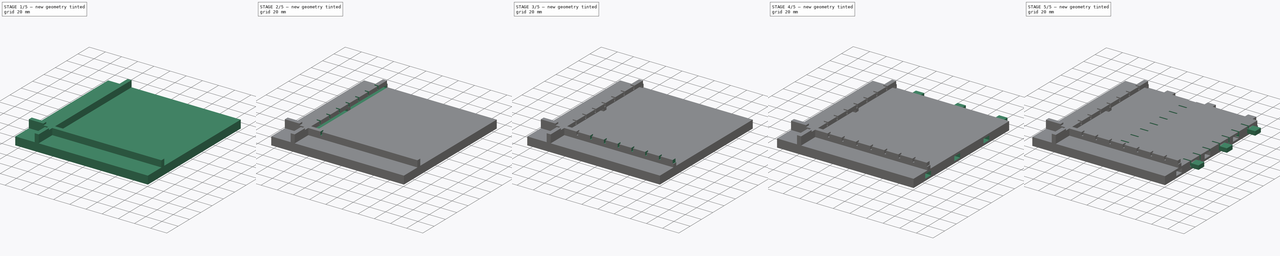
[diagram: build sequence overview — one tinted view per stage of 5, left to right]
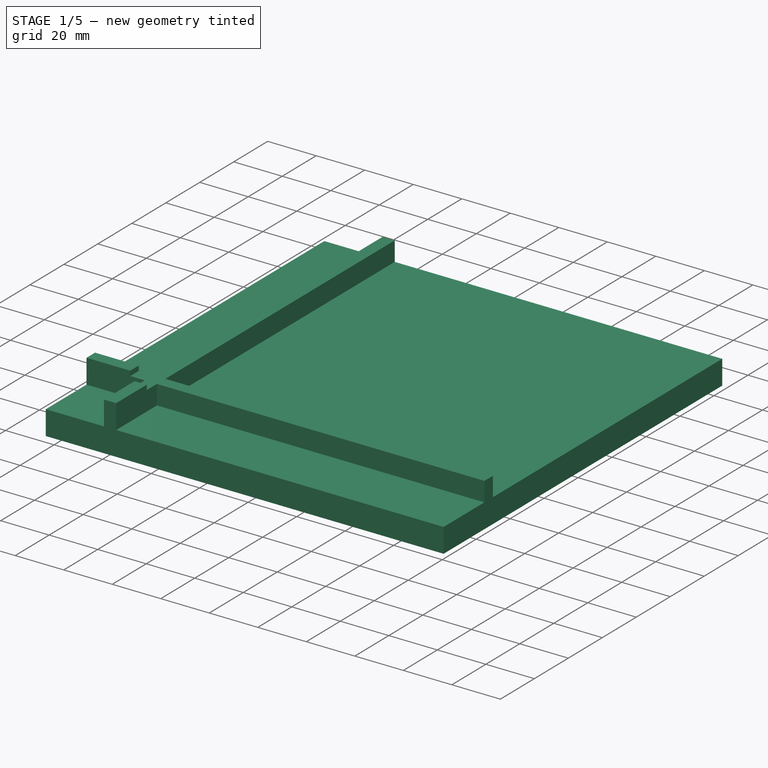
[diagram: stage 1 of 5 — iso view after this stage's code; geometry added in this stage tinted green]
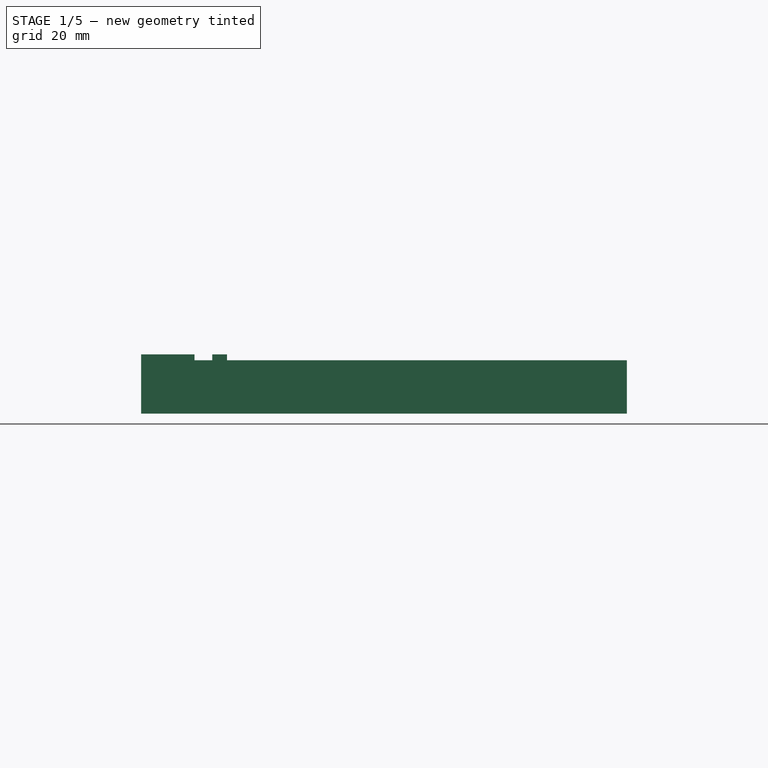
[diagram: stage 1 of 5 — front view after this stage's code; geometry added in this stage tinted green]
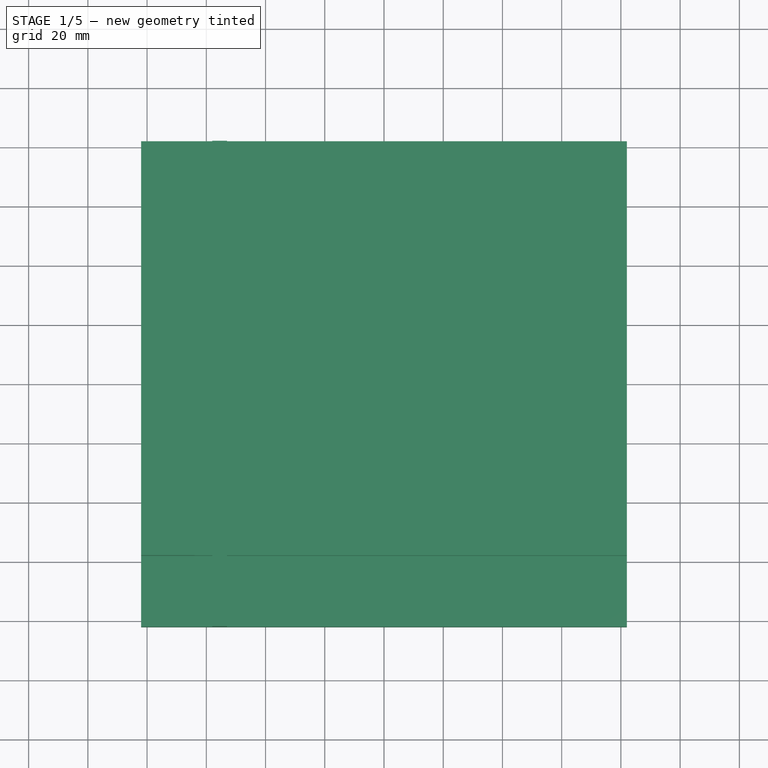
[diagram: stage 1 of 5 — top view after this stage's code; geometry added in this stage tinted green]
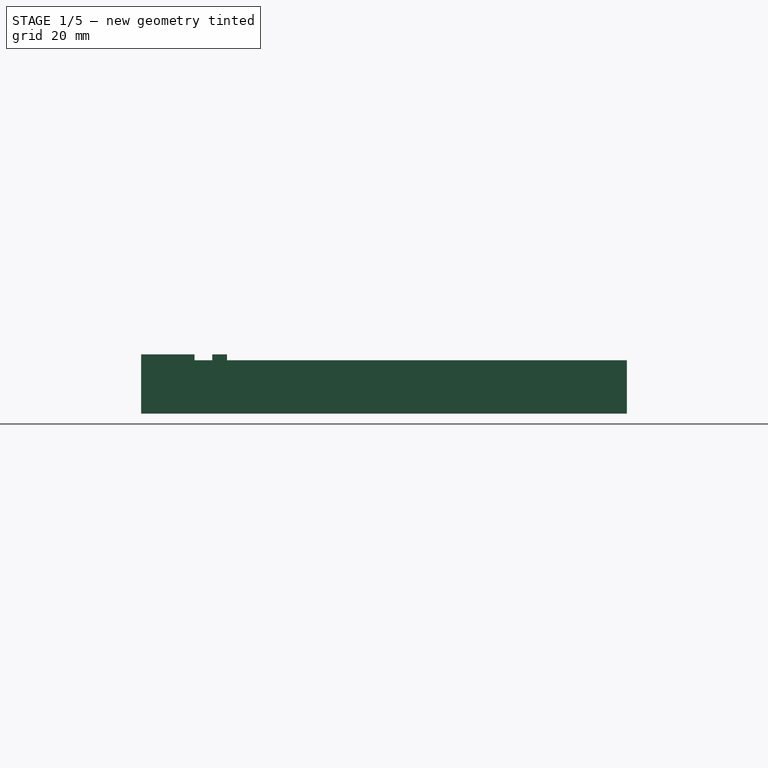
[diagram: stage 1 of 5 — right view after this stage's code; geometry added in this stage tinted green]
FCSTD DOCUMENT  (FreeCAD 2024.207R38947 (Git))
Label: frame_plate_left_bottom_debugging_rt
License: All rights reserved
LicenseURL: http://en.wikipedia.org/wiki/All_rights_reserved
objects: Sketcher::SketchObject×12, PartDesign::Pocket×8, PartDesign::LinearPattern×8, PartDesign::Pad×4, PartDesign::MultiTransform×1, PartDesign::Body×1
note: 88 computed .brp shape members not serialized (recipe doc carries the construction recipe); baked Part::Feature solids carry a one-line shape summary decoded from their .brp

FEATURE [Sketcher::SketchObject] Sketch  label="LB-plate"
  ArcFitTolerance = 0
  AttachmentSupport = -> [XY_Plane]
  ExternalBSplineMaxDegree = 0
  ExternalBSplineTolerance = 0
  FullyConstrained = true
  InternalTolerance = 1e-06
  InvalidShape = false
  MakeInternals = false
  MapMode = 5
  Support = -> [XY_Plane]
  TreeRank = 0
  ValidateShape = false
  sketch-geometry (4):
    g0: LineSegment StartX=-82 StartY=82 StartZ=0 EndX=82 EndY=82 EndZ=0
    g1: LineSegment StartX=82 StartY=82 StartZ=0 EndX=82 EndY=-82 EndZ=0
    g2: LineSegment StartX=82 StartY=-82 StartZ=0 EndX=-82 EndY=-82 EndZ=0
    g3: LineSegment StartX=-82 StartY=-82 StartZ=0 EndX=-82 EndY=82 EndZ=0
  constraints (10):
    c: Coincident(g0,g1)
    c: Coincident(g1,g2)
    c: Coincident(g2,g3)
    c: Coincident(g3,g0)
    c: Horizontal(g2)
    c: Vertical(g3)
    c: DistanceX(g2,g1) = 164
    c: DistanceY(g2,g0) = 164
    c: Symmetric(g1,g0,g-1)
    c: Symmetric(g0,g0,g-2)
FEATURE [PartDesign::Pad] Pad
  AddSubType = 0
  AutoTaperInnerAngle = true
  CheckUpToFaceLimits = true
  ClaimChildren = false
  Direction = (0,0,1)
  Fit = 0
  FitJoin = 0
  InnerFit = 0
  InnerFitJoin = 0
  InvalidShape = false
  Length = 10
  Length2 = 10
  NewSolid = false
  Profile = -> Sketch
  ReferenceAxis = -> Sketch [N_Axis]
  Suppress = false
  TaperInnerAngle = 0
  TaperInnerAngleRev = 0
  TreeRank = 0
  Type = 0
  ValidateShape = true
  _ProfileBasedVersion = 0
FEATURE [Sketcher::SketchObject] Sketch001  label="LB-bounds"
  ArcFitTolerance = 0
  AttachmentSupport = -> [Pad]
  ExternalBSplineMaxDegree = 0
  ExternalBSplineTolerance = 0
  FullyConstrained = true
  InternalTolerance = 1e-06
  InvalidShape = false
  MakeInternals = false
  MapMode = 5
  Placement = pos=(0,0,10) rot=(0,0,1;0rad)
  Support = -> [Pad]
  TreeRank = 0
  ValidateShape = false
  sketch-geometry (8):
    g0: LineSegment StartX=-82 StartY=-53 StartZ=0 EndX=82 EndY=-53 EndZ=0
    g1: LineSegment StartX=82 StartY=-53 StartZ=0 EndX=82 EndY=-58 EndZ=0
    g2: LineSegment StartX=82 StartY=-58 StartZ=0 EndX=-82 EndY=-58 EndZ=0
    g3: LineSegment StartX=-82 StartY=-58 StartZ=0 EndX=-82 EndY=-53 EndZ=0
    g4: LineSegment StartX=-53 StartY=82 StartZ=0 EndX=-58 EndY=82 EndZ=0
    g5: LineSegment StartX=-58 StartY=82 StartZ=0 EndX=-58 EndY=-82 EndZ=0
    g6: LineSegment StartX=-58 StartY=-82 StartZ=0 EndX=-53 EndY=-82 EndZ=0
    g7: LineSegment StartX=-53 StartY=-82 StartZ=0 EndX=-53 EndY=82 EndZ=0
  constraints (24):
    c: Coincident(g0,g1)
    c: Coincident(g1,g2)
    c: Coincident(g2,g3)
    c: Coincident(g3,g0)
    c: Horizontal(g0)
    c: Horizontal(g2)
    c: Vertical(g1)
    c: Vertical(g3)
    c: DistanceY(g2,g0) = 5
    c: Coincident(g4,g5)
    c: Coincident(g5,g6)
    c: Coincident(g6,g7)
    c: Coincident(g7,g4)
    c: Horizontal(g4)
    c: Horizontal(g6)
    c: Vertical(g5)
    c: Vertical(g7)
    c: DistanceX(g5,g6) = 5
    c: DistanceX(g2,g6) = 29
    c: DistanceY(g5,g0) = 29
    c: DistanceY(g0,g-1) = 53
    c: DistanceX(g6,g-1) = 53
    c: DistanceX(g2,g1) = 164
    c: DistanceY(g5,g4) = 164
FEATURE [PartDesign::Pad] Pad001
  AddSubType = 0
  AutoTaperInnerAngle = true
  BaseFeature = -> Pad
  CheckUpToFaceLimits = true
  ClaimChildren = false
  Direction = (0,0,1)
  Fit = 0
  FitJoin = 0
  InnerFit = 0
  InnerFitJoin = 0
  InvalidShape = false
  Length = 10
  Length2 = 10
  NewSolid = false
  Profile = -> Sketch001
  ReferenceAxis = -> Sketch001 [N_Axis]
  Suppress = false
  TaperInnerAngle = 0
  TaperInnerAngleRev = 0
  TreeRank = 0
  Type = 0
  ValidateShape = true
  _ProfileBasedVersion = 0
FEATURE [Sketcher::SketchObject] Sketch005  label="LB-H-plex-cutout"
  ArcFitTolerance = 0
  ExternalBSplineMaxDegree = 0
  ExternalBSplineTolerance = 0
  ExternalGeometry = -> [Pad001]
  FullyConstrained = true
  InternalTolerance = 1e-06
  InvalidShape = false
  MakeInternals = false
  MapMode = 5
  Placement = pos=(0,-53,0) rot=(0,0.707107,0.707107;3.14159rad)
  TreeRank = 0
  ValidateShape = false
  sketch-geometry (4):
    g0: LineSegment StartX=-82 StartY=20 StartZ=0 EndX=64 EndY=20 EndZ=0
    g1: LineSegment StartX=64 StartY=20 StartZ=0 EndX=64 EndY=18 EndZ=0
    g2: LineSegment StartX=64 StartY=18 StartZ=0 EndX=-82 EndY=18 EndZ=0
    g3: LineSegment StartX=-82 StartY=18 StartZ=0 EndX=-82 EndY=20 EndZ=0
  constraints (12):
    c: Coincident(g0,g1)
    c: Coincident(g1,g2)
    c: Coincident(g2,g3)
    c: Coincident(g3,g0)
    c: Horizontal(g0)
    c: Horizontal(g2)
    c: Vertical(g1)
    c: Vertical(g3)
    c: DistanceY(g1,g0) = 2
    c: DistanceX(g1,g-3) = 18
    c: PointOnObject(g2,g-5)
    c: PointOnObject(g0,g-6)
FEATURE [PartDesign::Pocket] Pocket
  AddSubType = 1
  AlongSketchNormal = false
  AutoTaperInnerAngle = true
  BaseFeature = -> Pad001
  CheckUpToFaceLimits = true
  ClaimChildren = false
  Direction = (-1e-16,-1,2e-16)
  Fit = 0
  FitJoin = 0
  InnerFit = 0
  InnerFitJoin = 0
  InvalidShape = false
  Length = 5
  Length2 = 10
  Linearize = true
  NewSolid = false
  Profile = -> Sketch005
  ReferenceAxis = -> Sketch005 [N_Axis]
  Suppress = false
  TaperInnerAngle = 0
  TaperInnerAngleRev = 0
  TreeRank = 1
  Type = 0
  ValidateShape = true
  _ProfileBasedVersion = 1
  _Version = 1
FEATURE [Sketcher::SketchObject] Sketch006  label="LB-V-plex-cutout"
  ArcFitTolerance = 1e-06
  AttachmentSupport = -> [Pocket]
  ExternalBSplineMaxDegree = 5
  ExternalBSplineTolerance = 0.0001
  ExternalGeometry = -> [Pocket]
  FullyConstrained = true
  InternalTolerance = 1e-06
  InvalidShape = false
  MakeInternals = false
  MapMode = 5
  Placement = pos=(-53,0,0) rot=(0.57735,0.57735,0.57735;2.0944rad)
  Support = -> [Pocket]
  TreeRank = 2
  ValidateShape = false
  sketch-geometry (4):
    g0: LineSegment StartX=-64 StartY=20 StartZ=0 EndX=82 EndY=20 EndZ=0
    g1: LineSegment StartX=82 StartY=20 StartZ=0 EndX=82 EndY=18 EndZ=0
    g2: LineSegment StartX=82 StartY=18 StartZ=0 EndX=-64 EndY=18 EndZ=0
    g3: LineSegment StartX=-64 StartY=18 StartZ=0 EndX=-64 EndY=20 EndZ=0
  constraints (11):
    c: Coincident(g0,g1)
    c: Coincident(g1,g2)
    c: Coincident(g2,g3)
    c: Coincident(g3,g0)
    c: Horizontal(g0)
    c: Horizontal(g2)
    c: Vertical(g1)
    c: Vertical(g3)
    c: DistanceY(g2,g0) = 2
    c: Coincident(g0,g-3)
    c: DistanceX(g-4,g0) = 18
FEATURE [PartDesign::Pocket] Pocket001
  AddSubType = 1
  AlongSketchNormal = false
  AutoTaperInnerAngle = true
  BaseFeature = -> Pocket
  CheckUpToFaceLimits = true
  ClaimChildren = false
  Direction = (-1,0,0)
  Fit = 0
  FitJoin = 0
  InnerFit = 0
  InnerFitJoin = 0
  InvalidShape = false
  Length = 5
  Length2 = 10
  Linearize = true
  NewSolid = false
  Profile = -> Sketch006
  ReferenceAxis = -> Sketch006 [N_Axis]
  Suppress = false
  TaperInnerAngle = 0
  TaperInnerAngleRev = 0
  TreeRank = 3
  Type = 0
  ValidateShape = true
  _ProfileBasedVersion = 1
  _Version = 1
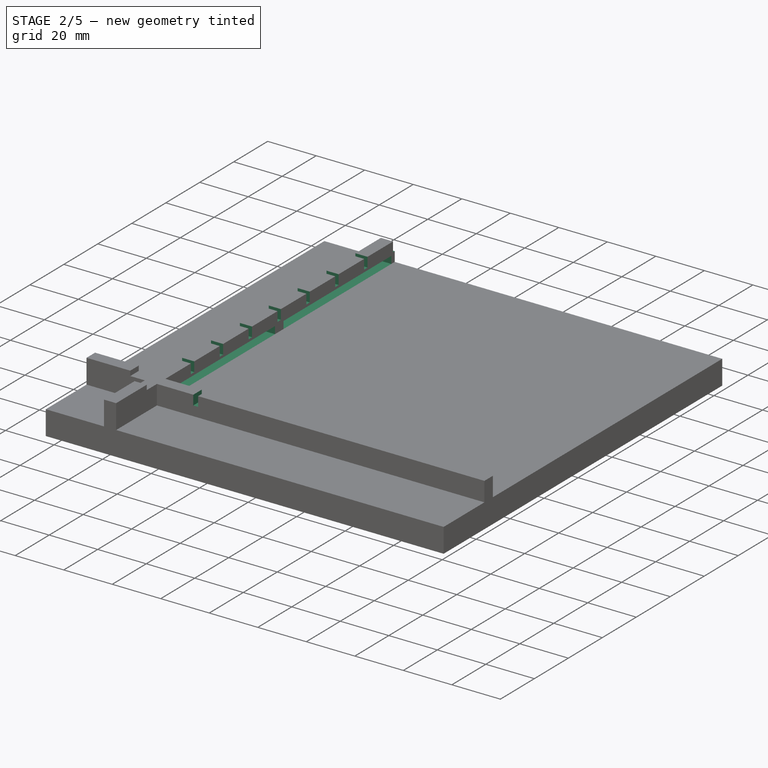
[diagram: stage 2 of 5 — iso view after this stage's code; geometry added in this stage tinted green]
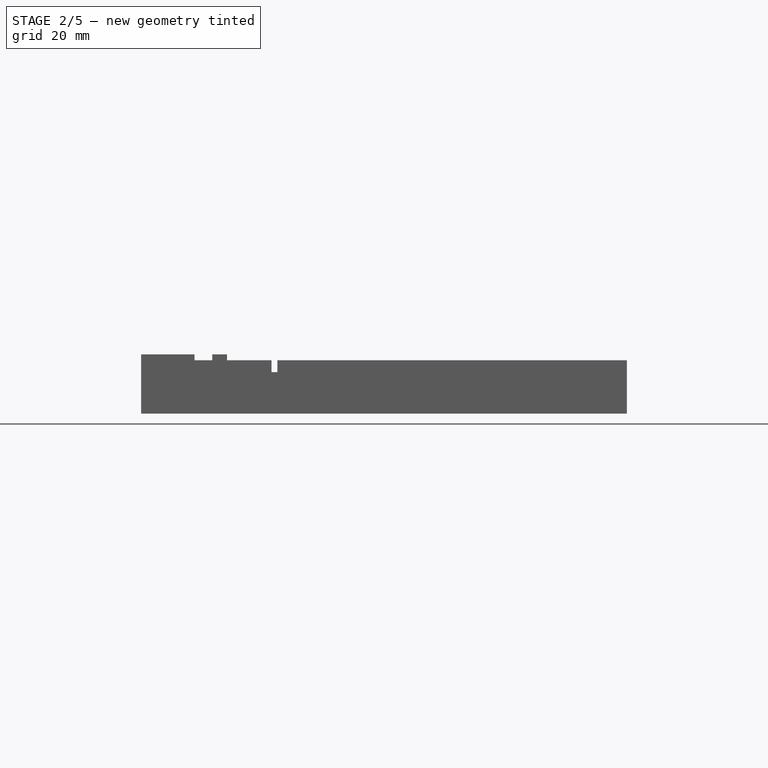
[diagram: stage 2 of 5 — front view after this stage's code; geometry added in this stage tinted green]
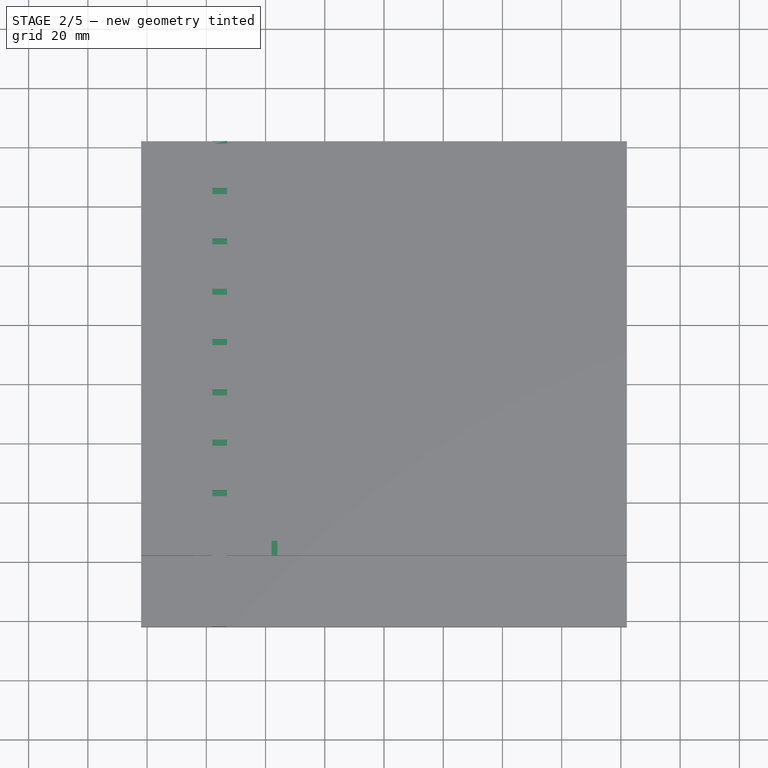
[diagram: stage 2 of 5 — top view after this stage's code; geometry added in this stage tinted green]
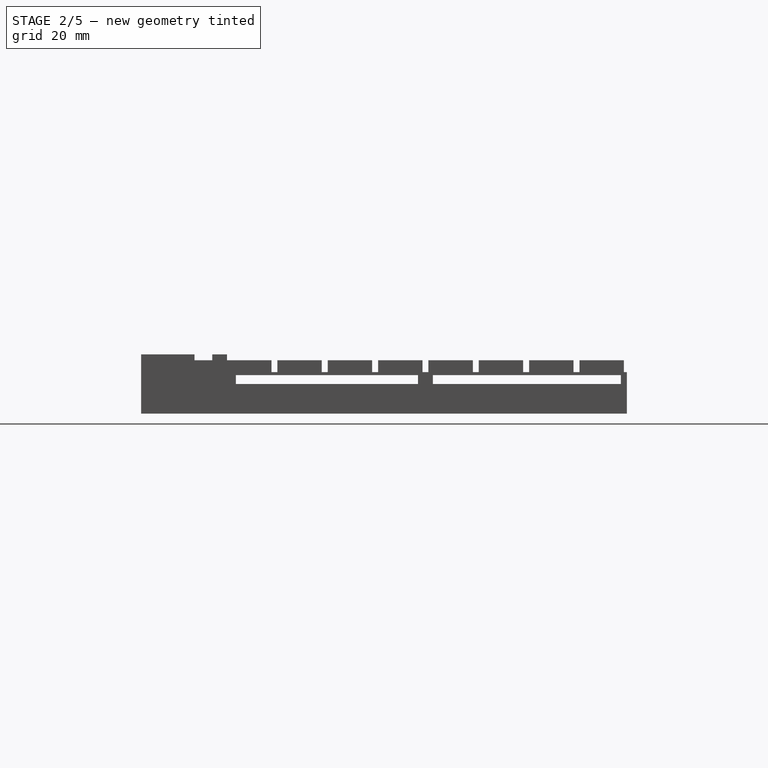
[diagram: stage 2 of 5 — right view after this stage's code; geometry added in this stage tinted green]
FEATURE [Sketcher::SketchObject] Sketch007  label="LB-V-crisscross-cutout"
  ArcFitTolerance = 1e-06
  AttachmentSupport = -> [Pocket001]
  ExternalBSplineMaxDegree = 5
  ExternalBSplineTolerance = 0.0001
  ExternalGeometry = -> [Pocket001]
  FullyConstrained = true
  InternalTolerance = 1e-06
  InvalidShape = false
  MakeInternals = false
  MapMode = 5
  Placement = pos=(-53,0,0) rot=(0.57735,0.57735,0.57735;2.0944rad)
  Support = -> [Pocket001]
  TreeRank = 4
  ValidateShape = false
  sketch-geometry (4):
    g0: LineSegment StartX=-38 StartY=18 StartZ=0 EndX=-36 EndY=18 EndZ=0
    g1: LineSegment StartX=-36 StartY=18 StartZ=0 EndX=-36 EndY=14 EndZ=0
    g2: LineSegment StartX=-36 StartY=14 StartZ=0 EndX=-38 EndY=14 EndZ=0
    g3: LineSegment StartX=-38 StartY=14 StartZ=0 EndX=-38 EndY=18 EndZ=0
  constraints (12):
    c: Coincident(g0,g1)
    c: Coincident(g1,g2)
    c: Coincident(g2,g3)
    c: Coincident(g3,g0)
    c: Horizontal(g0)
    c: Horizontal(g2)
    c: Vertical(g1)
    c: Vertical(g3)
    c: DistanceX(g0,g0) = 2
    c: DistanceY(g2,g0) = 4
    c: DistanceX(g-3,g0) = 15
    c: PointOnObject(g0,g-4)
FEATURE [PartDesign::Pocket] Pocket002
  AddSubType = 1
  AlongSketchNormal = false
  AutoTaperInnerAngle = true
  BaseFeature = -> Pocket001
  CheckUpToFaceLimits = true
  ClaimChildren = false
  Direction = (-1,0,0)
  Fit = 0
  FitJoin = 0
  InnerFit = 0
  InnerFitJoin = 0
  InvalidShape = false
  Length = 5
  Length2 = 10
  Linearize = true
  NewSolid = false
  Profile = -> Sketch007
  ReferenceAxis = -> Sketch007 [N_Axis]
  Suppress = false
  TaperInnerAngle = 0
  TaperInnerAngleRev = 0
  TreeRank = 5
  Type = 0
  ValidateShape = true
  _ProfileBasedVersion = 1
  _Version = 1
FEATURE [PartDesign::LinearPattern] LinearPattern
  AddSubType = 0
  BaseFeature = -> Pocket002
  CopyShape = false
  Direction = -> Y_Axis
  InvalidShape = false
  Length = 136
  NewSolid = false
  Occurrences = 9
  OriginalSubs = -> [Pocket002]
  Originals = -> [Pocket002]
  ParallelTransform = true
  SubTransform = true
  Suppress = false
  TreeRank = 6
  ValidateShape = true
  _Version = 3
FEATURE [Sketcher::SketchObject] Sketch008  label="LB-V-cable-cutout"
  ArcFitTolerance = 1e-06
  AttachmentSupport = -> [LinearPattern]
  ExternalBSplineMaxDegree = 5
  ExternalBSplineTolerance = 0.0001
  ExternalGeometry = -> [LinearPattern]
  FullyConstrained = true
  InternalTolerance = 1e-06
  InvalidShape = false
  MakeInternals = false
  MapMode = 5
  Placement = pos=(-53,0,0) rot=(0.57735,0.57735,0.57735;2.0944rad)
  Support = -> [LinearPattern]
  TreeRank = 7
  ValidateShape = false
  sketch-geometry (8):
    g0: LineSegment StartX=-50 StartY=13 StartZ=0 EndX=11.5 EndY=13 EndZ=0
    g1: LineSegment StartX=11.5 StartY=13 StartZ=0 EndX=11.5 EndY=10 EndZ=0
    g2: LineSegment StartX=11.5 StartY=10 StartZ=0 EndX=-50 EndY=10 EndZ=0
    g3: LineSegment StartX=-50 StartY=10 StartZ=0 EndX=-50 EndY=13 EndZ=0
    g4: LineSegment StartX=16.5 StartY=13 StartZ=0 EndX=80 EndY=13 EndZ=0
    g5: LineSegment StartX=80 StartY=13 StartZ=0 EndX=80 EndY=10 EndZ=0
    g6: LineSegment StartX=80 StartY=10 StartZ=0 EndX=16.5 EndY=10 EndZ=0
    g7: LineSegment StartX=16.5 StartY=10 StartZ=0 EndX=16.5 EndY=13 EndZ=0
  constraints (24):
    c: Coincident(g0,g1)
    c: Coincident(g1,g2)
    c: Coincident(g2,g3)
    c: Coincident(g3,g0)
    c: Horizontal(g0)
    c: Horizontal(g2)
    c: Vertical(g1)
    c: Vertical(g3)
    c: Coincident(g4,g5)
    c: Coincident(g5,g6)
    c: Coincident(g6,g7)
    c: Coincident(g7,g4)
    c: Horizontal(g4)
    c: Horizontal(g6)
    c: Vertical(g5)
    c: Vertical(g7)
    c: DistanceY(g5,g4) = 3
    c: DistanceY(g1,g0) = 3
    c: DistanceX(g5,g-3) = 2
    c: DistanceX(g-4,g2) = 3
    c: DistanceX(g-6,g4) = 1.5
    c: DistanceX(g0,g-5) = 1.5
    c: PointOnObject(g6,g-7)
    c: PointOnObject(g1,g-7)
FEATURE [PartDesign::Pocket] Pocket003
  AddSubType = 1
  AlongSketchNormal = false
  AutoTaperInnerAngle = true
  BaseFeature = -> LinearPattern
  CheckUpToFaceLimits = true
  ClaimChildren = false
  Direction = (-1,0,0)
  Fit = 0
  FitJoin = 0
  InnerFit = 0
  InnerFitJoin = 0
  InvalidShape = false
  Length = 5
  Length2 = 10
  Linearize = true
  NewSolid = false
  Profile = -> Sketch008
  ReferenceAxis = -> Sketch008 [N_Axis]
  Suppress = false
  TaperInnerAngle = 0
  TaperInnerAngleRev = 0
  TreeRank = 8
  Type = 0
  ValidateShape = true
  _ProfileBasedVersion = 1
  _Version = 1
FEATURE [Sketcher::SketchObject] Sketch009  label="LB-H-crisscross-cutout"
  ArcFitTolerance = 1e-06
  AttachmentSupport = -> [Pocket003]
  ExternalBSplineMaxDegree = 5
  ExternalBSplineTolerance = 0.0001
  ExternalGeometry = -> [Pocket003]
  FullyConstrained = true
  InternalTolerance = 1e-06
  InvalidShape = false
  MakeInternals = false
  MapMode = 5
  Placement = pos=(0,-53,0) rot=(0,0.707107,0.707107;3.14159rad)
  Support = -> [Pocket003]
  TreeRank = 9
  ValidateShape = false
  sketch-geometry (4):
    g0: LineSegment StartX=36 StartY=18 StartZ=0 EndX=38 EndY=18 EndZ=0
    g1: LineSegment StartX=38 StartY=18 StartZ=0 EndX=38 EndY=14 EndZ=0
    g2: LineSegment StartX=38 StartY=14 StartZ=0 EndX=36 EndY=14 EndZ=0
    g3: LineSegment StartX=36 StartY=14 StartZ=0 EndX=36 EndY=18 EndZ=0
  constraints (12):
    c: Coincident(g0,g1)
    c: Coincident(g1,g2)
    c: Coincident(g2,g3)
    c: Coincident(g3,g0)
    c: Horizontal(g0)
    c: Horizontal(g2)
    c: Vertical(g1)
    c: Vertical(g3)
    c: DistanceY(g1,g0) = 4
    c: DistanceX(g0,g0) = 2
    c: PointOnObject(g0,g-4)
    c: DistanceX(g0,g-4) = 15
FEATURE [PartDesign::Pocket] Pocket004
  AddSubType = 1
  AlongSketchNormal = false
  AutoTaperInnerAngle = true
  BaseFeature = -> Pocket003
  CheckUpToFaceLimits = true
  ClaimChildren = false
  Direction = (0,-1,2e-16)
  Fit = 0
  FitJoin = 0
  InnerFit = 0
  InnerFitJoin = 0
  InvalidShape = false
  Length = 5
  Length2 = 10
  Linearize = true
  NewSolid = false
  Profile = -> Sketch009
  ReferenceAxis = -> Sketch009 [N_Axis]
  Suppress = false
  TaperInnerAngle = 0
  TaperInnerAngleRev = 0
  TreeRank = 10
  Type = 0
  ValidateShape = true
  _ProfileBasedVersion = 1
  _Version = 1
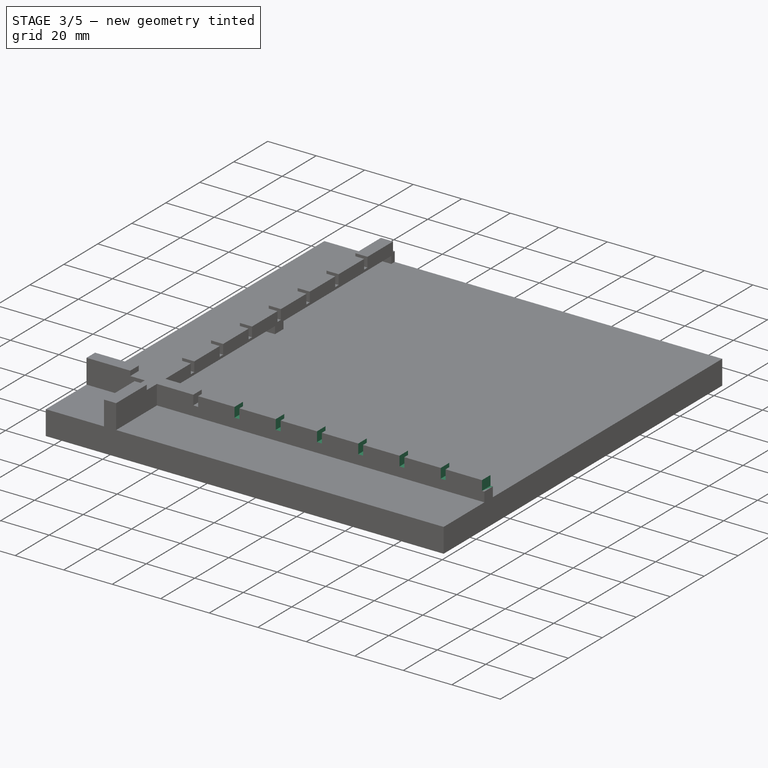
[diagram: stage 3 of 5 — iso view after this stage's code; geometry added in this stage tinted green]
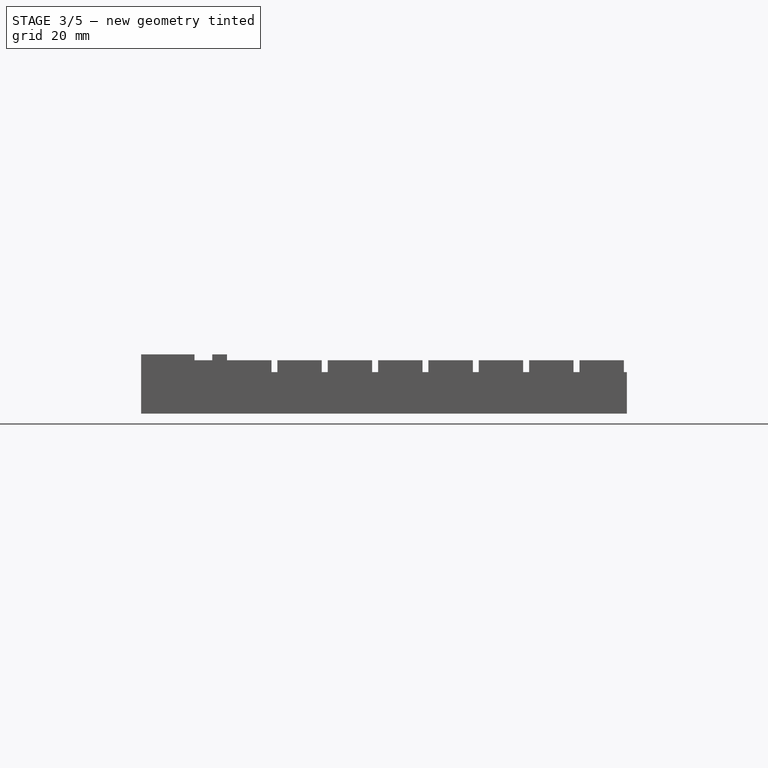
[diagram: stage 3 of 5 — front view after this stage's code; geometry added in this stage tinted green]
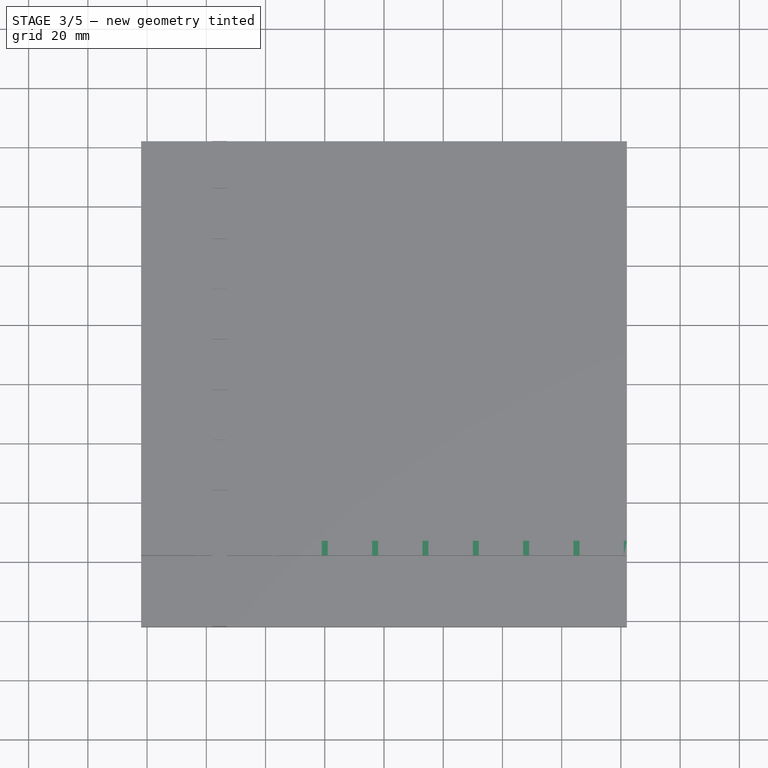
[diagram: stage 3 of 5 — top view after this stage's code; geometry added in this stage tinted green]
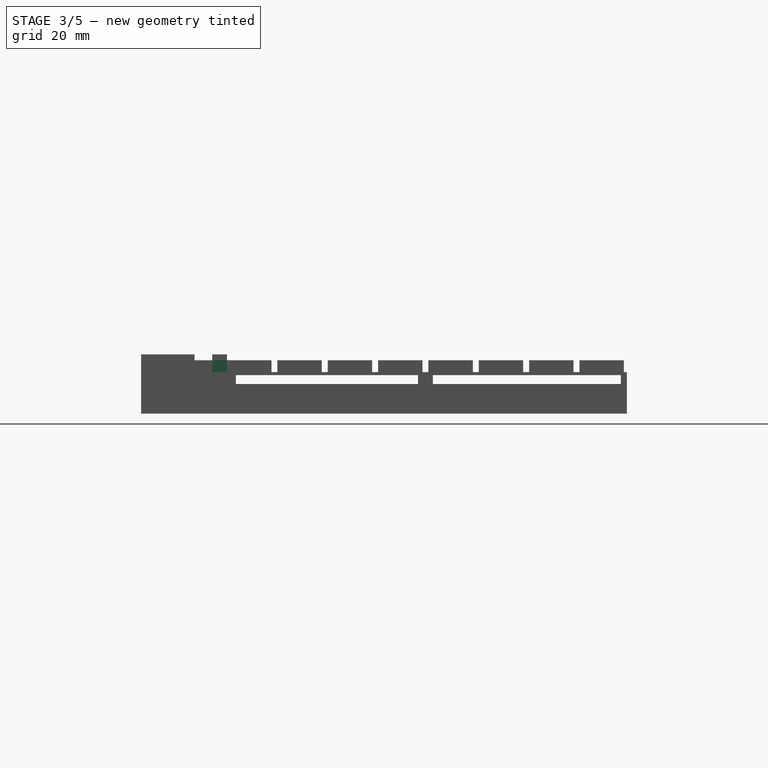
[diagram: stage 3 of 5 — right view after this stage's code; geometry added in this stage tinted green]
FEATURE [PartDesign::LinearPattern] LinearPattern001
  AddSubType = 0
  BaseFeature = -> Pocket004
  CopyShape = false
  Direction = -> Sketch009 [H_Axis]
  InvalidShape = false
  Length = 136
  NewSolid = false
  Occurrences = 9
  OriginalSubs = -> [Pocket004]
  Originals = -> [Pocket004]
  ParallelTransform = true
  Reversed = true
  SubTransform = true
  Suppress = false
  TreeRank = 11
  ValidateShape = true
  _Version = 3
FEATURE [Sketcher::SketchObject] Sketch010  label="LB-H-connector-cutout"
  ArcFitTolerance = 1e-06
  AttachmentSupport = -> [LinearPattern001]
  ExternalBSplineMaxDegree = 5
  ExternalBSplineTolerance = 0.0001
  ExternalGeometry = -> [LinearPattern001]
  FullyConstrained = true
  InternalTolerance = 1e-06
  InvalidShape = false
  MakeInternals = false
  MapMode = 5
  Placement = pos=(0,82,0) rot=(0,0.707107,0.707107;3.14159rad)
  Support = -> [LinearPattern001]
  TreeRank = 12
  ValidateShape = false
  sketch-geometry (4):
    g0: LineSegment StartX=52 StartY=7.5 StartZ=0 EndX=62 EndY=7.5 EndZ=0
    g1: LineSegment StartX=62 StartY=7.5 StartZ=0 EndX=62 EndY=2.5 EndZ=0
    g2: LineSegment StartX=62 StartY=2.5 StartZ=0 EndX=52 EndY=2.5 EndZ=0
    g3: LineSegment StartX=52 StartY=2.5 StartZ=0 EndX=52 EndY=7.5 EndZ=0
  constraints (12):
    c: Coincident(g0,g1)
    c: Coincident(g1,g2)
    c: Coincident(g2,g3)
    c: Coincident(g3,g0)
    c: Horizontal(g0)
    c: Horizontal(g2)
    c: Vertical(g1)
    c: Vertical(g3)
    c: DistanceY(g1,g0) = 5
    c: DistanceX(g2,g1) = 10
    c: DistanceX(g1,g-3) = 20
    c: DistanceY(g-1,g1) = 2.5
FEATURE [PartDesign::Pocket] Pocket005
  AddSubType = 1
  AlongSketchNormal = false
  AutoTaperInnerAngle = true
  BaseFeature = -> LinearPattern001
  CheckUpToFaceLimits = true
  ClaimChildren = false
  Direction = (0,-1,2e-16)
  Fit = 0
  FitJoin = 0
  InnerFit = 0
  InnerFitJoin = 0
  InvalidShape = false
  Length = 10
  Length2 = 10
  Linearize = true
  NewSolid = false
  Profile = -> Sketch010
  ReferenceAxis = -> Sketch010 [N_Axis]
  Suppress = false
  TaperInnerAngle = 0
  TaperInnerAngleRev = 0
  TreeRank = 13
  Type = 0
  ValidateShape = true
  _ProfileBasedVersion = 1
  _Version = 1
FEATURE [PartDesign::LinearPattern] LinearPattern002
  AddSubType = 0
  BaseFeature = -> Pocket005
  CopyShape = false
  Direction = -> Sketch010 [H_Axis]
  InvalidShape = false
  Length = 100
  NewSolid = false
  Occurrences = 3
  OriginalSubs = -> [Pocket005]
  Originals = -> [Pocket005]
  ParallelTransform = true
  Reversed = true
  SubTransform = true
  Suppress = false
  TreeRank = 14
  ValidateShape = true
  _Version = 3
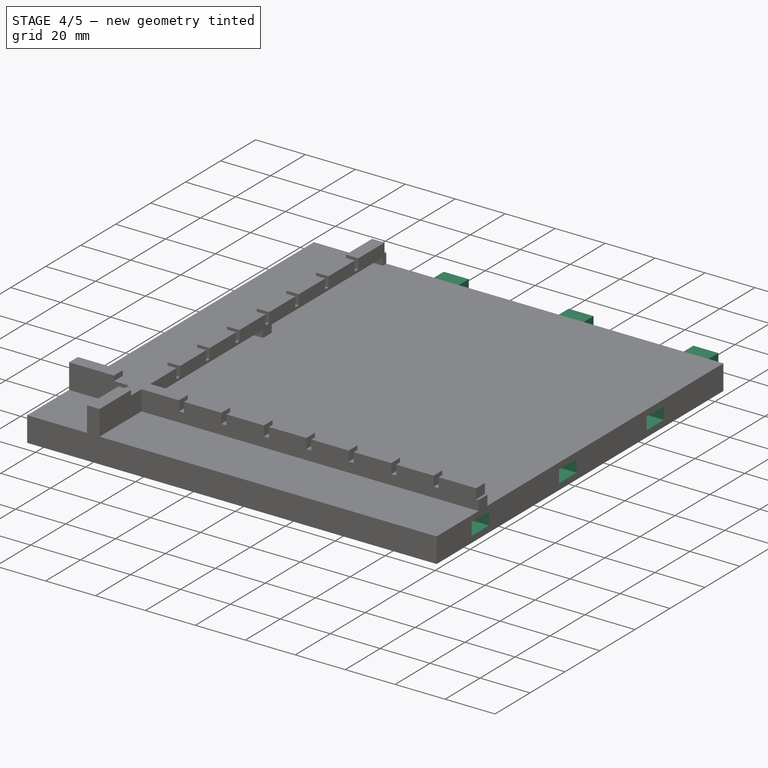
[diagram: stage 4 of 5 — iso view after this stage's code; geometry added in this stage tinted green]
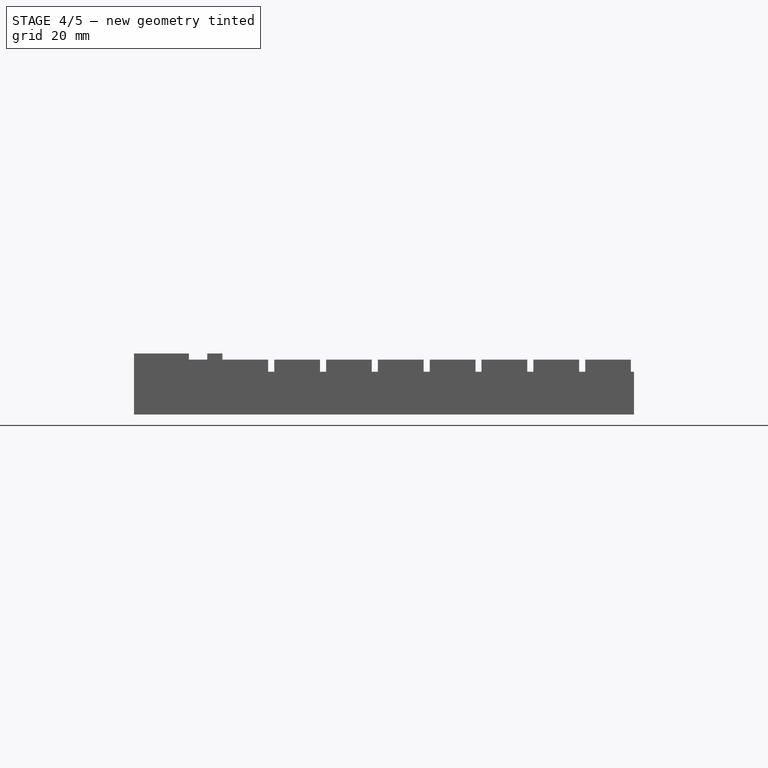
[diagram: stage 4 of 5 — front view after this stage's code; geometry added in this stage tinted green]
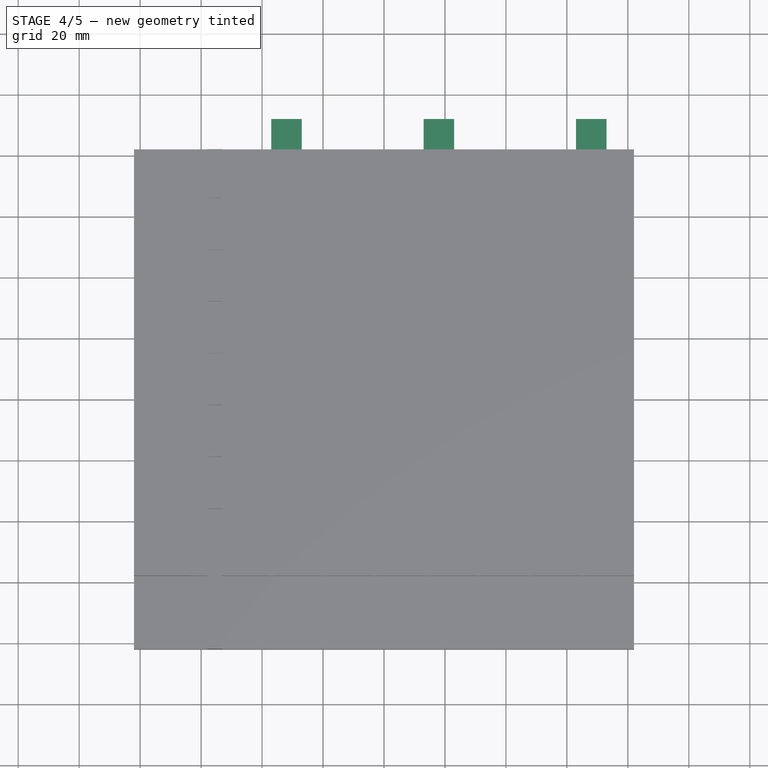
[diagram: stage 4 of 5 — top view after this stage's code; geometry added in this stage tinted green]
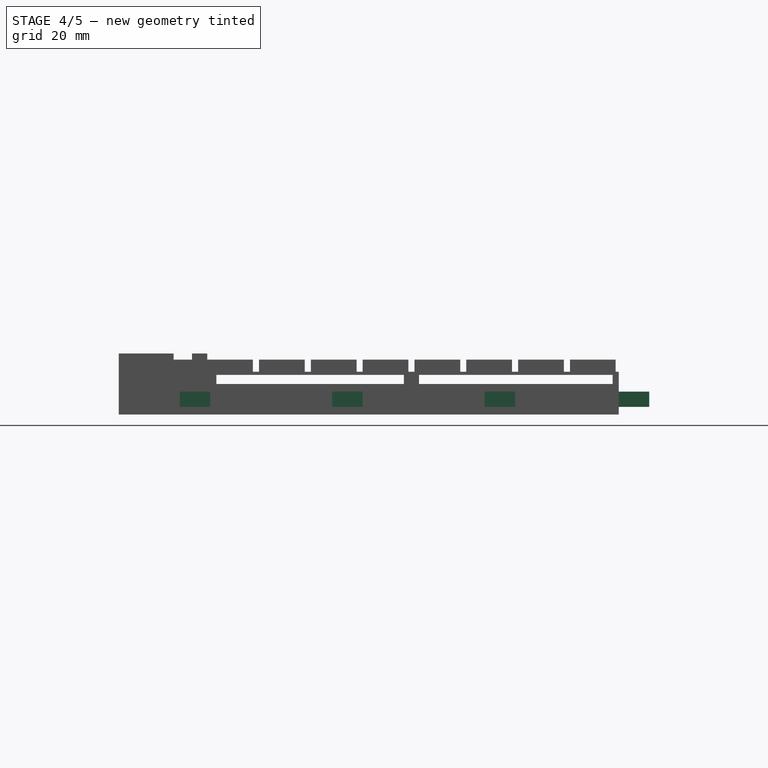
[diagram: stage 4 of 5 — right view after this stage's code; geometry added in this stage tinted green]
FEATURE [Sketcher::SketchObject] Sketch011  label="LB-H-connector-pad"
  ArcFitTolerance = 1e-06
  AttachmentSupport = -> [LinearPattern002]
  ExternalBSplineMaxDegree = 5
  ExternalBSplineTolerance = 0.0001
  ExternalGeometry = -> [LinearPattern002]
  FullyConstrained = true
  InternalTolerance = 1e-06
  InvalidShape = false
  MakeInternals = false
  MapMode = 5
  Placement = pos=(0,82,0) rot=(0,0.707107,0.707107;3.14159rad)
  Support = -> [LinearPattern002]
  TreeRank = 15
  ValidateShape = false
  sketch-geometry (4):
    g0: LineSegment StartX=27 StartY=7.5 StartZ=0 EndX=37 EndY=7.5 EndZ=0
    g1: LineSegment StartX=37 StartY=7.5 StartZ=0 EndX=37 EndY=2.5 EndZ=0
    g2: LineSegment StartX=37 StartY=2.5 StartZ=0 EndX=27 EndY=2.5 EndZ=0
    g3: LineSegment StartX=27 StartY=2.5 StartZ=0 EndX=27 EndY=7.5 EndZ=0
  constraints (12):
    c: Coincident(g0,g1)
    c: Coincident(g1,g2)
    c: Coincident(g2,g3)
    c: Coincident(g3,g0)
    c: Horizontal(g0)
    c: Horizontal(g2)
    c: Vertical(g1)
    c: Vertical(g3)
    c: DistanceX(g0,g0) = 10
    c: DistanceY(g1,g0) = 5
    c: DistanceX(g0,g-3) = 15
    c: DistanceY(g0,g-4) = 2.5
FEATURE [PartDesign::Pad] Pad002
  AddSubType = 0
  AlongSketchNormal = false
  AutoTaperInnerAngle = true
  BaseFeature = -> LinearPattern002
  CheckUpToFaceLimits = true
  ClaimChildren = false
  Direction = (0,1,-2e-16)
  Fit = 0
  FitJoin = 0
  InnerFit = 0
  InnerFitJoin = 0
  InvalidShape = false
  Length = 10
  Length2 = 10
  Linearize = true
  NewSolid = false
  Profile = -> Sketch011
  ReferenceAxis = -> Sketch011 [N_Axis]
  Suppress = false
  TaperInnerAngle = 0
  TaperInnerAngleRev = 0
  TreeRank = 16
  Type = 0
  ValidateShape = true
  _ProfileBasedVersion = 1
FEATURE [PartDesign::LinearPattern] LinearPattern003
  AddSubType = 0
  BaseFeature = -> Pad002
  CopyShape = false
  Direction = -> X_Axis
  InvalidShape = false
  Length = 100
  NewSolid = false
  Occurrences = 3
  OriginalSubs = -> [Pad002]
  Originals = -> [Pad002]
  ParallelTransform = true
  SubTransform = true
  Suppress = false
  TreeRank = 17
  ValidateShape = true
  _Version = 3
FEATURE [Sketcher::SketchObject] Sketch012  label="LB-V-connector-cutout"
  ArcFitTolerance = 1e-06
  AttachmentSupport = -> [LinearPattern003]
  ExternalBSplineMaxDegree = 5
  ExternalBSplineTolerance = 0.0001
  ExternalGeometry = -> [LinearPattern003]
  FullyConstrained = true
  InternalTolerance = 1e-06
  InvalidShape = false
  MakeInternals = false
  MapMode = 5
  Placement = pos=(82,0,0) rot=(0.57735,0.57735,0.57735;2.0944rad)
  Support = -> [LinearPattern003]
  TreeRank = 18
  ValidateShape = false
  sketch-geometry (4):
    g0: LineSegment StartX=-62 StartY=7.5 StartZ=0 EndX=-52 EndY=7.5 EndZ=0
    g1: LineSegment StartX=-52 StartY=7.5 StartZ=0 EndX=-52 EndY=2.5 EndZ=0
    g2: LineSegment StartX=-52 StartY=2.5 StartZ=0 EndX=-62 EndY=2.5 EndZ=0
    g3: LineSegment StartX=-62 StartY=2.5 StartZ=0 EndX=-62 EndY=7.5 EndZ=0
  constraints (12):
    c: Coincident(g0,g1)
    c: Coincident(g1,g2)
    c: Coincident(g2,g3)
    c: Coincident(g3,g0)
    c: Horizontal(g0)
    c: Horizontal(g2)
    c: Vertical(g1)
    c: Vertical(g3)
    c: DistanceY(g1,g0) = 5
    c: DistanceX(g2,g1) = 10
    c: DistanceX(g-4,g0) = 20
    c: DistanceY(g0,g-4) = 2.5
FEATURE [PartDesign::Pocket] Pocket006
  AddSubType = 1
  AlongSketchNormal = false
  AutoTaperInnerAngle = true
  BaseFeature = -> LinearPattern003
  CheckUpToFaceLimits = true
  ClaimChildren = false
  Direction = (-1,0,0)
  Fit = 0
  FitJoin = 0
  InnerFit = 0
  InnerFitJoin = 0
  InvalidShape = false
  Length = 10
  Length2 = 10
  Linearize = true
  NewSolid = false
  Profile = -> Sketch012
  ReferenceAxis = -> Sketch012 [N_Axis]
  Suppress = false
  TaperInnerAngle = 0
  TaperInnerAngleRev = 0
  TreeRank = 19
  Type = 0
  ValidateShape = true
  _ProfileBasedVersion = 1
  _Version = 1
FEATURE [PartDesign::LinearPattern] LinearPattern004
  AddSubType = 0
  BaseFeature = -> Pocket006
  CopyShape = false
  Direction = -> Sketch012 [H_Axis]
  InvalidShape = false
  Length = 100
  NewSolid = false
  Occurrences = 3
  OriginalSubs = -> [Pocket006]
  Originals = -> [Pocket006]
  ParallelTransform = true
  SubTransform = true
  Suppress = false
  TreeRank = 20
  ValidateShape = true
  _Version = 3
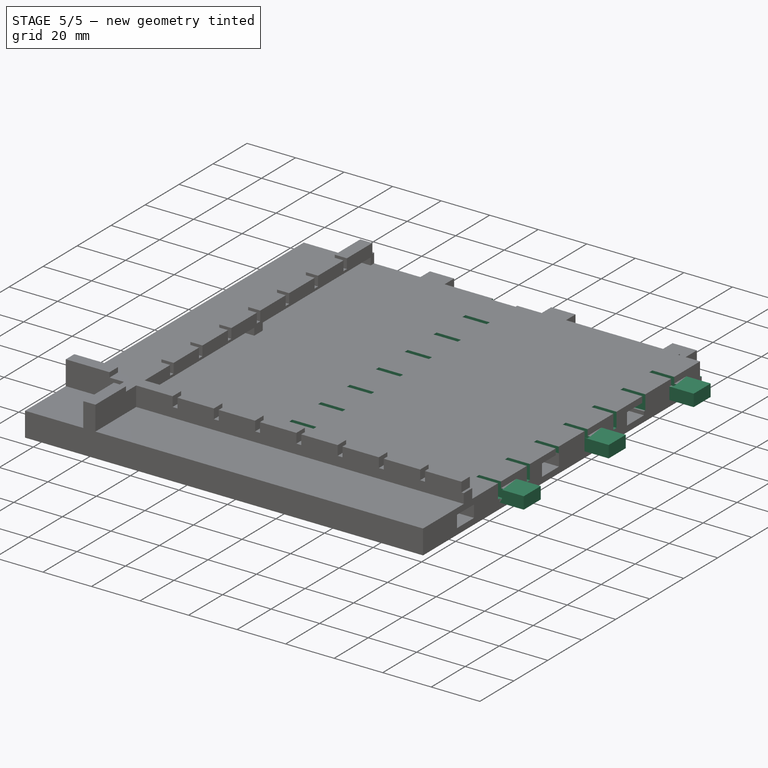
[diagram: stage 5 of 5 — iso view after this stage's code; geometry added in this stage tinted green]
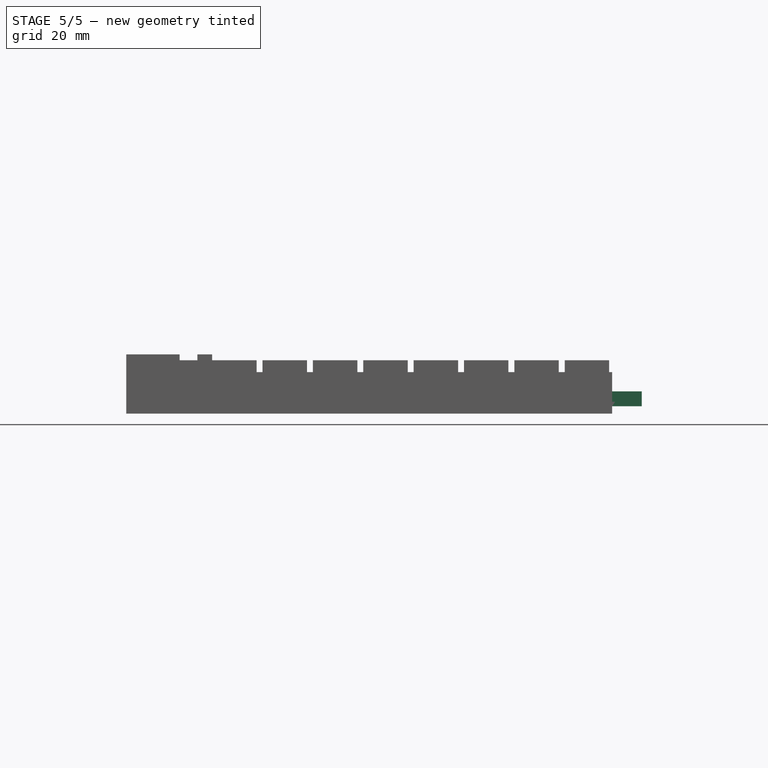
[diagram: stage 5 of 5 — front view after this stage's code; geometry added in this stage tinted green]
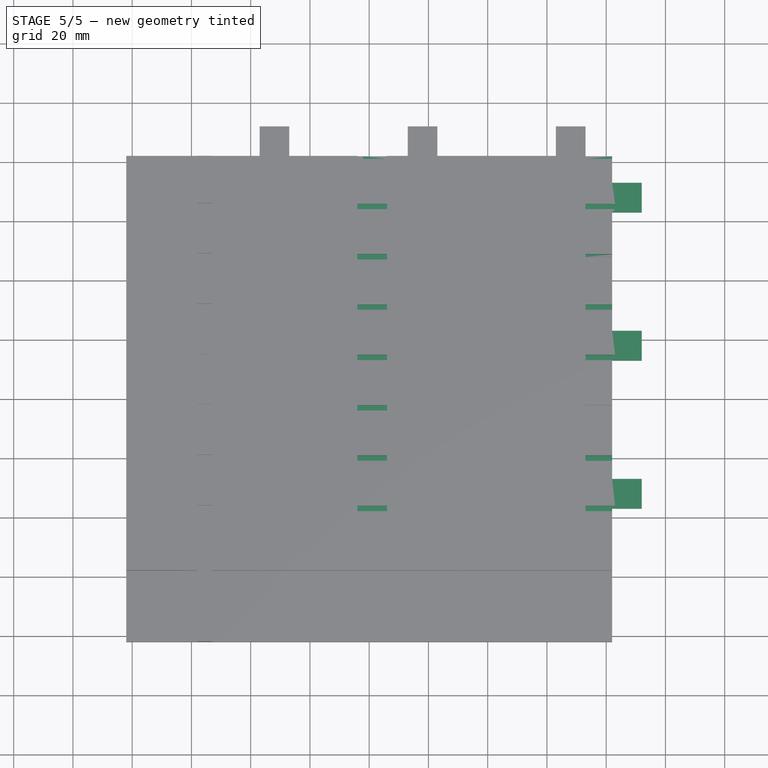
[diagram: stage 5 of 5 — top view after this stage's code; geometry added in this stage tinted green]
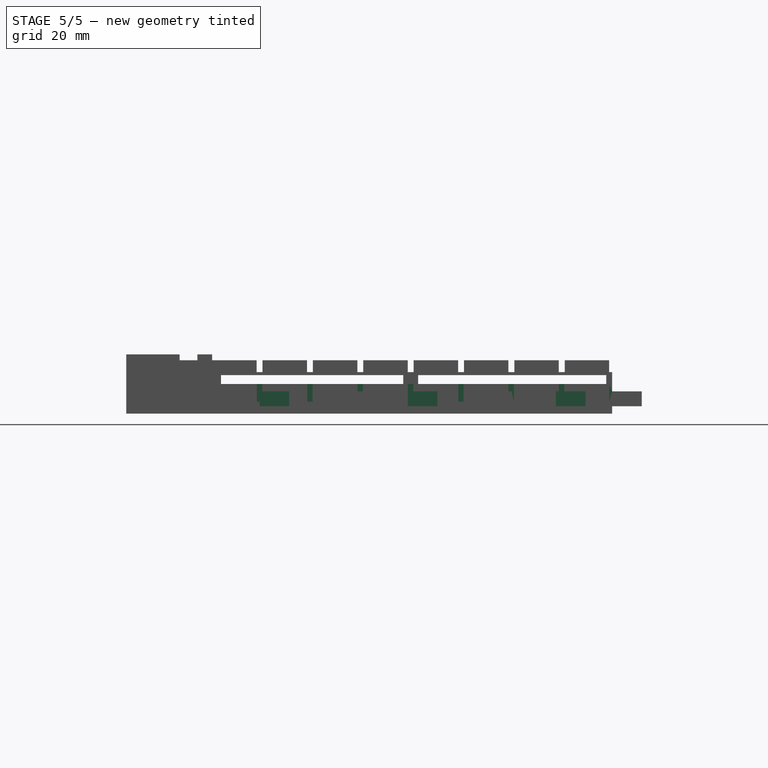
[diagram: stage 5 of 5 — right view after this stage's code; geometry added in this stage tinted green]
FEATURE [Sketcher::SketchObject] Sketch013  label="LB-V-connector-pad"
  ArcFitTolerance = 1e-06
  AttachmentSupport = -> [LinearPattern004]
  ExternalBSplineMaxDegree = 5
  ExternalBSplineTolerance = 0.0001
  ExternalGeometry = -> [LinearPattern004]
  FullyConstrained = true
  InternalTolerance = 1e-06
  InvalidShape = false
  MakeInternals = false
  MapMode = 5
  Placement = pos=(82,0,0) rot=(0.57735,0.57735,0.57735;2.0944rad)
  Support = -> [LinearPattern004]
  TreeRank = 21
  ValidateShape = false
  sketch-geometry (4):
    g0: LineSegment StartX=-37 StartY=7.5 StartZ=0 EndX=-27 EndY=7.5 EndZ=0
    g1: LineSegment StartX=-27 StartY=7.5 StartZ=0 EndX=-27 EndY=2.5 EndZ=0
    g2: LineSegment StartX=-27 StartY=2.5 StartZ=0 EndX=-37 EndY=2.5 EndZ=0
    g3: LineSegment StartX=-37 StartY=2.5 StartZ=0 EndX=-37 EndY=7.5 EndZ=0
  constraints (12):
    c: Coincident(g0,g1)
    c: Coincident(g1,g2)
    c: Coincident(g2,g3)
    c: Coincident(g3,g0)
    c: Horizontal(g0)
    c: Horizontal(g2)
    c: Vertical(g1)
    c: Vertical(g3)
    c: DistanceY(g1,g0) = 5
    c: DistanceX(g2,g1) = 10
    c: DistanceX(g-3,g0) = 15
    c: DistanceY(g0,g-4) = 2.5
FEATURE [PartDesign::Pad] Pad003
  AddSubType = 0
  AlongSketchNormal = false
  AutoTaperInnerAngle = true
  BaseFeature = -> LinearPattern004
  CheckUpToFaceLimits = true
  ClaimChildren = false
  Direction = (1,0,0)
  Fit = 0
  FitJoin = 0
  InnerFit = 0
  InnerFitJoin = 0
  InvalidShape = false
  Length = 10
  Length2 = 10
  Linearize = true
  NewSolid = false
  Profile = -> Sketch013
  ReferenceAxis = -> Sketch013 [N_Axis]
  Suppress = false
  TaperInnerAngle = 0
  TaperInnerAngleRev = 0
  TreeRank = 22
  Type = 0
  ValidateShape = true
  _ProfileBasedVersion = 1
FEATURE [PartDesign::LinearPattern] LinearPattern005
  AddSubType = 0
  BaseFeature = -> Pad003
  CopyShape = false
  Direction = -> Sketch013 [H_Axis]
  InvalidShape = false
  Length = 100
  NewSolid = false
  Occurrences = 3
  OriginalSubs = -> [Pad003]
  Originals = -> [Pad003]
  ParallelTransform = true
  SubTransform = true
  Suppress = false
  TreeRank = 23
  ValidateShape = true
  _Version = 3
FEATURE [Sketcher::SketchObject] Sketch014  label="LB-H-crisscross-stabilizer-cutout-1of3"
  ArcFitTolerance = 1e-06
  AttachmentSupport = -> [LinearPattern005]
  ExternalBSplineMaxDegree = 5
  ExternalBSplineTolerance = 0.0001
  ExternalGeometry = -> [LinearPattern005]
  FullyConstrained = true
  InternalTolerance = 1e-06
  InvalidShape = false
  MakeInternals = false
  MapMode = 5
  Placement = pos=(0,0,10) rot=(0,0,1;0rad)
  Support = -> [LinearPattern005]
  TreeRank = 24
  ValidateShape = false
  sketch-geometry (4):
    g0: LineSegment StartX=-4 StartY=-36.1 StartZ=0 EndX=6 EndY=-36.1 EndZ=0
    g1: LineSegment StartX=6 StartY=-36.1 StartZ=0 EndX=6 EndY=-37.9 EndZ=0
    g2: LineSegment StartX=6 StartY=-37.9 StartZ=0 EndX=-4 EndY=-37.9 EndZ=0
    g3: LineSegment StartX=-4 StartY=-37.9 StartZ=0 EndX=-4 EndY=-36.1 EndZ=0
  constraints (12):
    c: Coincident(g0,g1)
    c: Coincident(g1,g2)
    c: Coincident(g2,g3)
    c: Coincident(g3,g0)
    c: Horizontal(g0)
    c: Horizontal(g2)
    c: Vertical(g1)
    c: Vertical(g3)
    c: DistanceX(g-3,g0) = 49
    c: DistanceY(g2,g0) = 1.8
    c: DistanceX(g2,g1) = 10
    c: DistanceY(g0,g-4) = 0.1
FEATURE [PartDesign::Pocket] Pocket007
  AddSubType = 1
  AlongSketchNormal = false
  AutoTaperInnerAngle = true
  BaseFeature = -> LinearPattern005
  CheckUpToFaceLimits = true
  ClaimChildren = false
  Direction = (0,0,-1)
  Fit = 0
  FitJoin = 0
  InnerFit = 0
  InnerFitJoin = 0
  InvalidShape = false
  Length = 6
  Length2 = 10
  Linearize = true
  NewSolid = false
  Profile = -> Sketch014
  ReferenceAxis = -> Sketch014 [N_Axis]
  Suppress = false
  TaperInnerAngle = 0
  TaperInnerAngleRev = 0
  TreeRank = 25
  Type = 0
  ValidateShape = true
  _ProfileBasedVersion = 1
  _Version = 1
FEATURE [PartDesign::LinearPattern] LinearPattern006
  AddSubType = 0
  CopyShape = false
  Direction = -> Y_Axis
  InvalidShape = false
  Length = 135.9
  NewSolid = false
  Occurrences = 9
  ParallelTransform = true
  SubTransform = true
  Suppress = false
  TreeRank = 27
  ValidateShape = true
  _Version = 3
FEATURE [PartDesign::LinearPattern] LinearPattern007
  AddSubType = 0
  CopyShape = false
  Direction = -> X_Axis
  InvalidShape = false
  Length = 77
  NewSolid = false
  Occurrences = 2
  ParallelTransform = true
  SubTransform = true
  Suppress = false
  TreeRank = 28
  ValidateShape = true
  _Version = 3
FEATURE [PartDesign::MultiTransform] MultiTransform
  AddSubType = 0
  BaseFeature = -> Pocket007
  CopyShape = false
  InvalidShape = false
  NewSolid = false
  OriginalSubs = -> [Pocket007]
  Originals = -> [Pocket007]
  ParallelTransform = true
  SubTransform = true
  Suppress = false
  Transformations = -> [LinearPattern006,LinearPattern007]
  TreeRank = 26
  ValidateShape = true
  _Version = 3
FEATURE [PartDesign::Body] Body  label="LB_plate"
  AutoGroupSolids = false
  ClaimAllChildren = false
  ExportMode = 0
  Group = -> [Sketch,Pad,Sketch001,Pad001,Sketch005,Pocket,Sketch006,Pocket001,Sketch007,Pocket002,LinearPattern,Sketch008,Pocket003,Sketch009,Pocket004,LinearPattern001,Sketch010,Pocket005,LinearPattern002,Sketch011,Pad002,LinearPattern003,Sketch012,Pocket006,LinearPattern004,Sketch013,Pad003,LinearPattern005,Sketch014,Pocket007,MultiTransform,LinearPattern006,LinearPattern007]
  InvalidShape = false
  Origin = -> Origin
  Tip = -> MultiTransform
  TreeRank = 0
  ValidateShape = false
  _ExportChildren = -> [Pad,Pad001,Pocket,Pocket001,Pocket002,LinearPattern,Pocket003,Pocket004,LinearPattern001,Pocket005,LinearPattern002,Pad002,LinearPattern003,Pocket006,LinearPattern004,Pad003,LinearPattern005,Pocket007,MultiTransform]
  _GroupVersion = 1
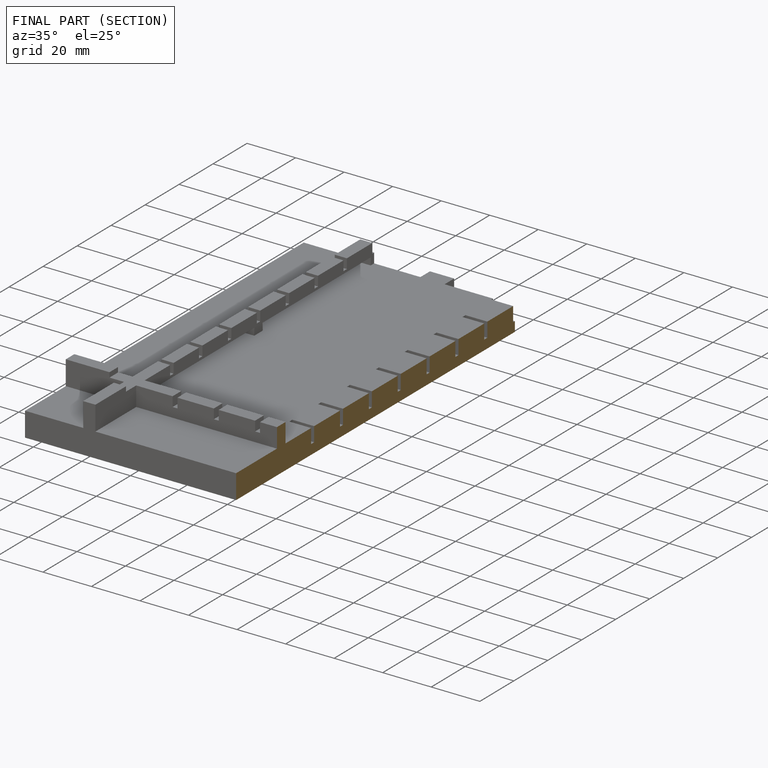
[diagram: finished part — half-section view (interior)]
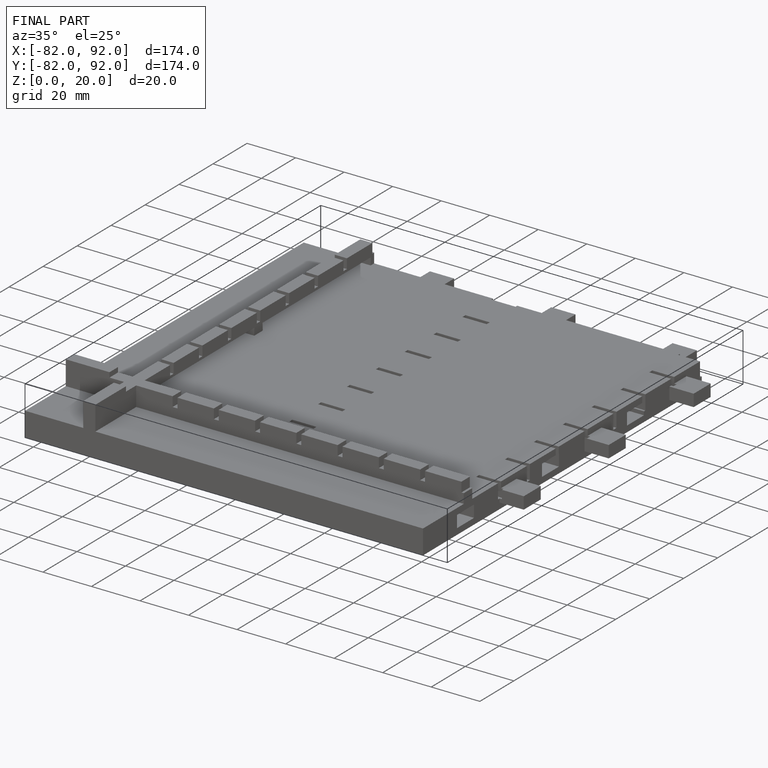
[diagram: finished part — iso view with bounding-box wireframe]
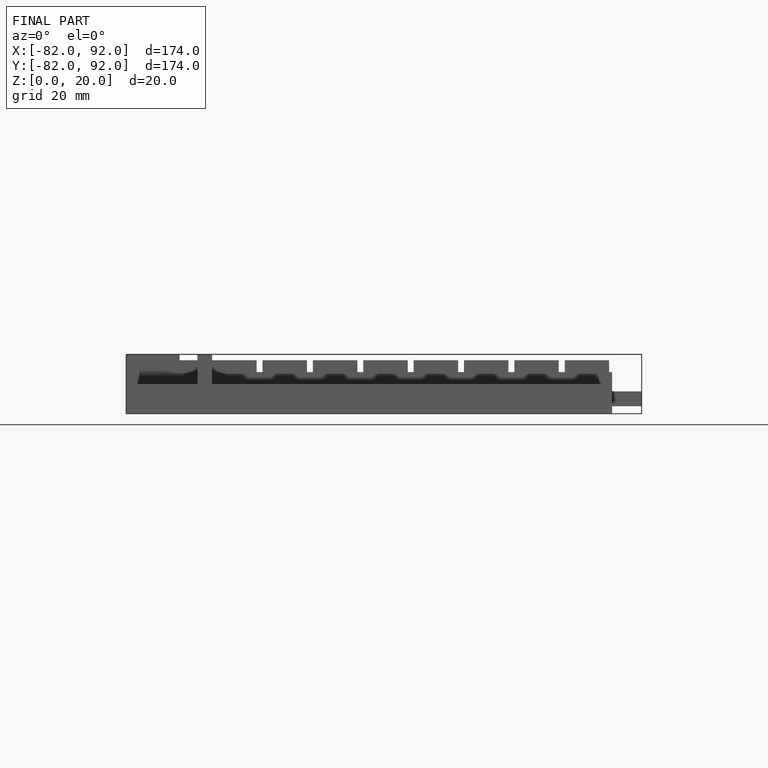
[diagram: finished part — front view with bounding-box wireframe]
